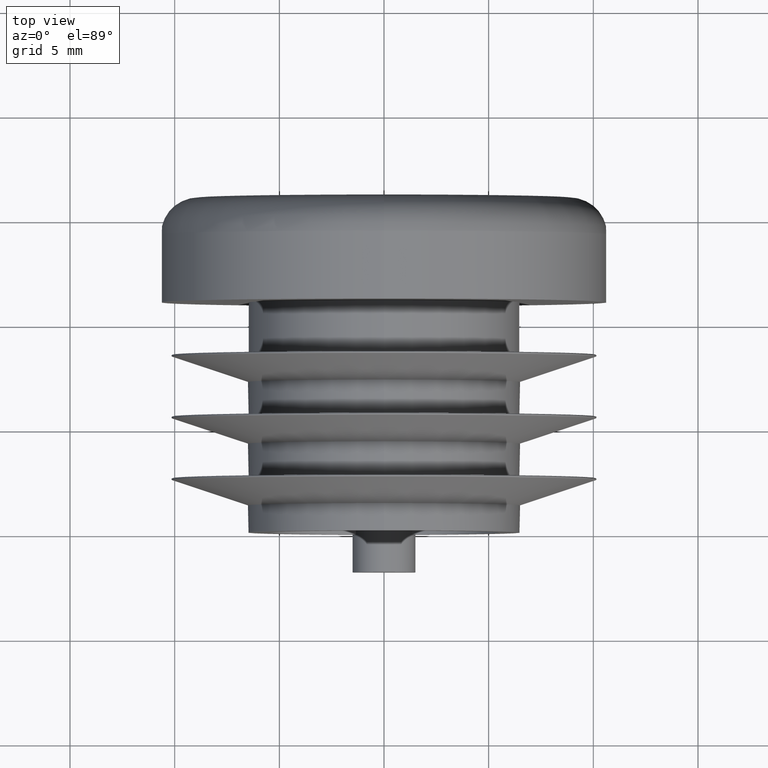
[diagram: clean part render]
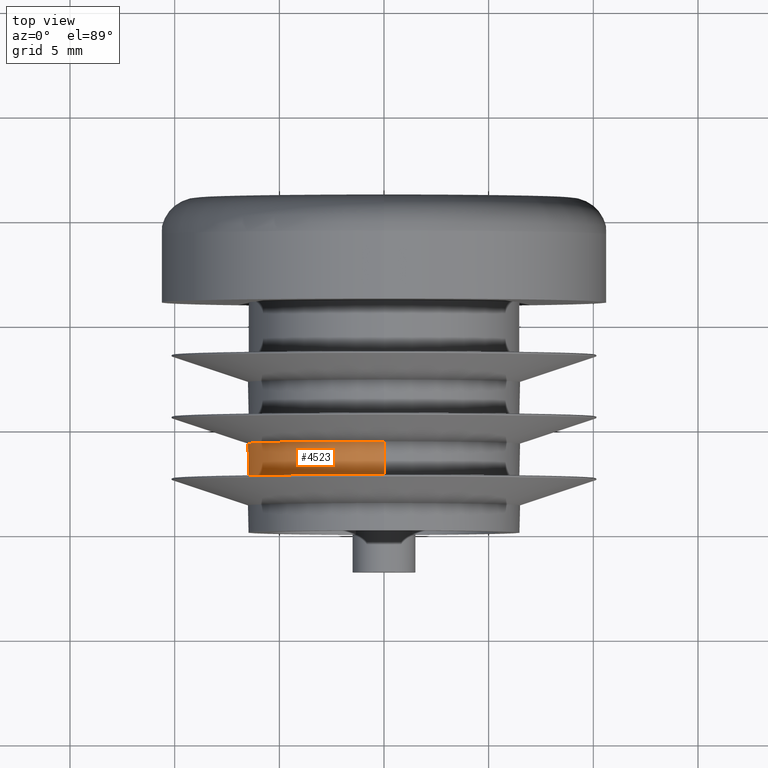
[diagram: same view with one face highlighted and labeled with its STEP entity id]
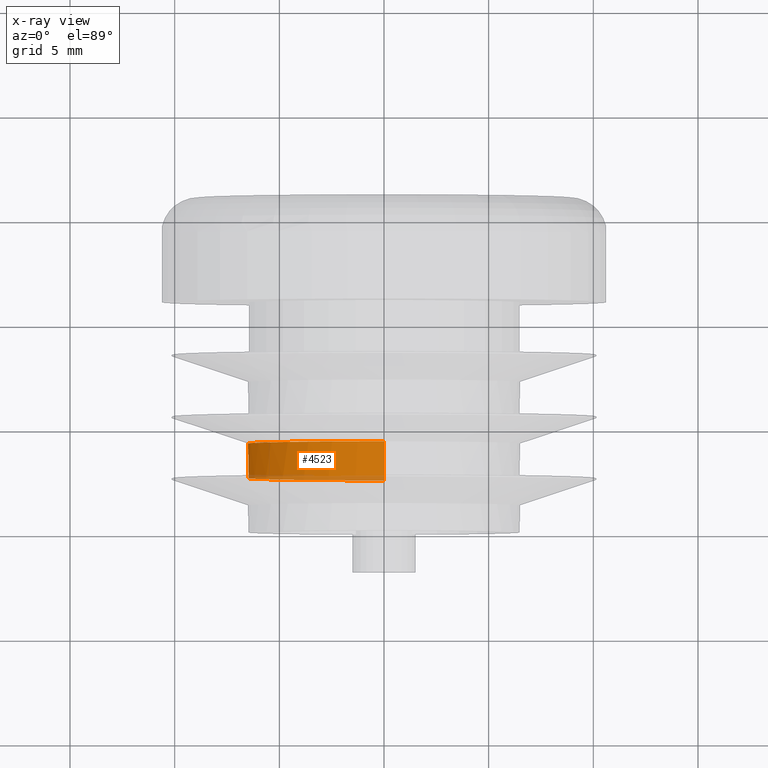
[diagram: x-ray of the same camera — body ghosted, the highlighted face saturated]
A machine part, top view. The second image highlights one B-rep face of the part: STEP entity #4523.
The next image is the same camera in x-ray: the body ghosted, the highlighted face saturated — about 12% of this face is hidden behind the body in this view.
In plain terms, the highlighted cylindrical surface (partial cylindrical patch) has radius 6.5 mm, axis along (-0, -1, -0).
Its self-contained STEP definition (entity closure, byte-faithful):
#244 = DIRECTION ( 'NONE',  ( -1.000000000000000000, -1.047506098955225919E-14, 0.000000000000000000 ) ) ;
#349 = CARTESIAN_POINT ( 'NONE',  ( 7.960204194450708548E-16, 2.599999999999933920, 6.499999999999999112 ) ) ;
#372 = DIRECTION ( 'NONE',  ( 0.000000000000000000, 0.000000000000000000, -1.000000000000000000 ) ) ;
#665 = VERTEX_POINT ( 'NONE', #5502 ) ;
#1215 = AXIS2_PLACEMENT_3D ( 'NONE', #5054, #1742, #10796 ) ;
#1742 = DIRECTION ( 'NONE',  ( -1.047444401652940164E-14, 1.000000000000000000, 0.000000000000000000 ) ) ;
#1847 = DIRECTION ( 'NONE',  ( -0.000000000000000000, -1.000000000000000000, -0.000000000000000000 ) ) ;
#1891 = AXIS2_PLACEMENT_3D ( 'NONE', #3168, #9425, #372 ) ;
#1949 = VERTEX_POINT ( 'NONE', #3769 ) ;
#2246 = ORIENTED_EDGE ( 'NONE', *, *, #5979, .F. ) ;
#2424 = EDGE_CURVE ( 'NONE', #7742, #1949, #5528, .T. ) ;
#2501 = VERTEX_POINT ( 'NONE', #9701 ) ;
#2823 = AXIS2_PLACEMENT_3D ( 'NONE', #10046, #4592, #9920 ) ;
#2975 = EDGE_CURVE ( 'NONE', #2501, #4106, #8355, .T. ) ;
#3125 = CIRCLE ( 'NONE', #2823, 6.499999999999999112 ) ;
#3168 = CARTESIAN_POINT ( 'NONE',  ( 0.000000000000000000, 11.00000000000000000, 0.000000000000000000 ) ) ;
#3769 = CARTESIAN_POINT ( 'NONE',  ( -7.086402933978556756E-28, 2.599999999999933920, -6.499999999999999112 ) ) ;
#4106 = VERTEX_POINT ( 'NONE', #349 ) ;
#4259 = CYLINDRICAL_SURFACE ( 'NONE', #1891, 6.499999999999999112 ) ;
#4499 = ORIENTED_EDGE ( 'NONE', *, *, #2975, .F. ) ;
#4523 = ADVANCED_FACE ( 'NONE', ( #11297 ), #4259, .T. ) ;
#4592 = DIRECTION ( 'NONE',  ( -1.047444401652940164E-14, 1.000000000000000000, 0.000000000000000000 ) ) ;
#4727 = ORIENTED_EDGE ( 'NONE', *, *, #5202, .F. ) ;
#5054 = CARTESIAN_POINT ( 'NONE',  ( -4.451638707024992819E-14, 4.249999999999997335, 0.000000000000000000 ) ) ;
#5202 = EDGE_CURVE ( 'NONE', #4106, #1949, #9717, .T. ) ;
#5502 = CARTESIAN_POINT ( 'NONE',  ( -6.500000000000042633, 4.249999999999929834, 0.000000000000000000 ) ) ;
#5528 = LINE ( 'NONE', #8070, #6686 ) ;
#5614 = DIRECTION ( 'NONE',  ( 1.047444401652940164E-14, -1.000000000000000000, -0.000000000000000000 ) ) ;
#5717 = ORIENTED_EDGE ( 'NONE', *, *, #5886, .F. ) ;
#5886 = EDGE_CURVE ( 'NONE', #665, #2501, #8586, .T. ) ;
#5900 = EDGE_LOOP ( 'NONE', ( #4499, #5717, #2246, #9151, #4727 ) ) ;
#5979 = EDGE_CURVE ( 'NONE', #7742, #665, #3125, .T. ) ;
#6307 = DIRECTION ( 'NONE',  ( -0.000000000000000000, -1.000000000000000000, -0.000000000000000000 ) ) ;
#6686 = VECTOR ( 'NONE', #6307, 1000.000000000000000 ) ;
#7326 = CARTESIAN_POINT ( 'NONE',  ( 0.000000000000000000, 2.599999999999933920, 0.000000000000000000 ) ) ;
#7742 = VERTEX_POINT ( 'NONE', #8295 ) ;
#8070 = CARTESIAN_POINT ( 'NONE',  ( 0.000000000000000000, 11.00000000000000000, -6.499999999999999112 ) ) ;
#8295 = CARTESIAN_POINT ( 'NONE',  ( -7.087422195345027939E-28, 4.249999999999997335, -6.499999999999999112 ) ) ;
#8355 = LINE ( 'NONE', #8955, #8365 ) ;
#8365 = VECTOR ( 'NONE', #1847, 1000.000000000000000 ) ;
#8586 = CIRCLE ( 'NONE', #1215, 6.499999999999999112 ) ;
#8955 = CARTESIAN_POINT ( 'NONE',  ( 7.960204194457794491E-16, 11.00000000000000000, 6.499999999999999112 ) ) ;
#9151 = ORIENTED_EDGE ( 'NONE', *, *, #2424, .T. ) ;
#9425 = DIRECTION ( 'NONE',  ( -0.000000000000000000, -1.000000000000000000, -0.000000000000000000 ) ) ;
#9701 = CARTESIAN_POINT ( 'NONE',  ( 7.960204194450690798E-16, 4.249999999999997335, 6.499999999999999112 ) ) ;
#9717 = CIRCLE ( 'NONE', #10718, 6.499999999999999112 ) ;
#9920 = DIRECTION ( 'NONE',  ( -1.000000000000000000, -1.040834085586084414E-14, 0.000000000000000000 ) ) ;
#10046 = CARTESIAN_POINT ( 'NONE',  ( -4.451638707024992819E-14, 4.249999999999997335, 0.000000000000000000 ) ) ;
#10718 = AXIS2_PLACEMENT_3D ( 'NONE', #7326, #5614, #244 ) ;
#10796 = DIRECTION ( 'NONE',  ( -1.000000000000000000, -1.040834085586084414E-14, 0.000000000000000000 ) ) ;
#11297 = FACE_OUTER_BOUND ( 'NONE', #5900, .T. ) ;